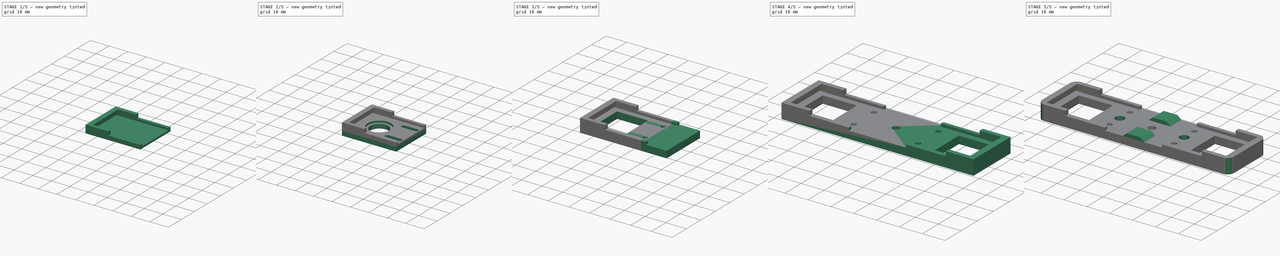
[diagram: build sequence overview — one tinted view per stage of 5, left to right]
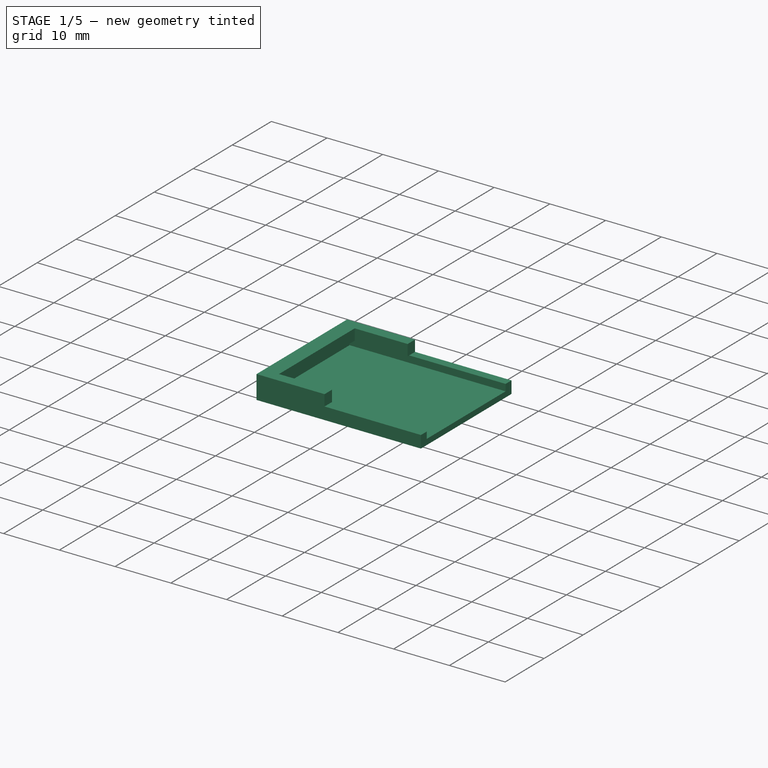
[diagram: stage 1 of 5 — iso view after this stage's code; geometry added in this stage tinted green]
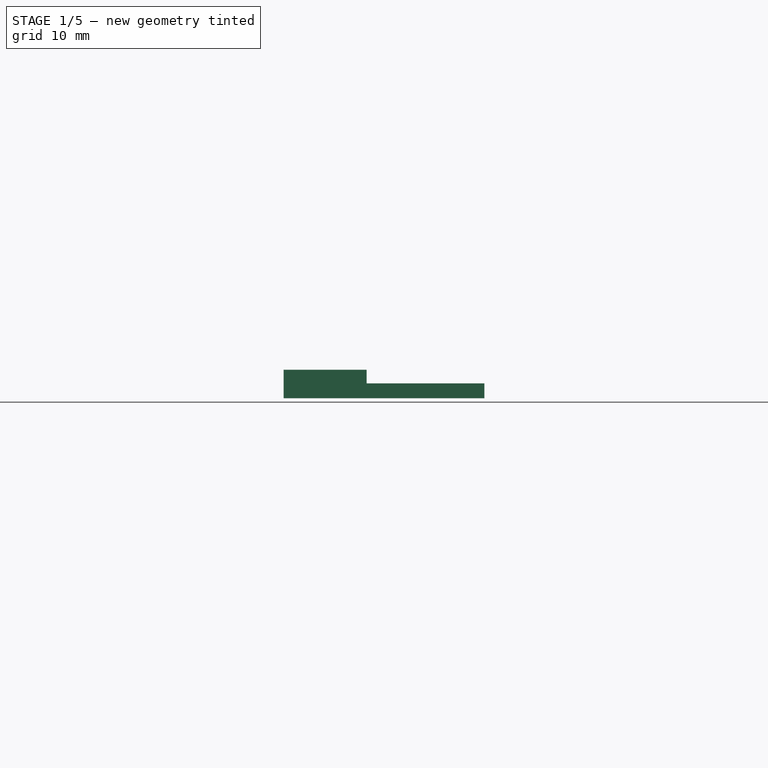
[diagram: stage 1 of 5 — front view after this stage's code; geometry added in this stage tinted green]
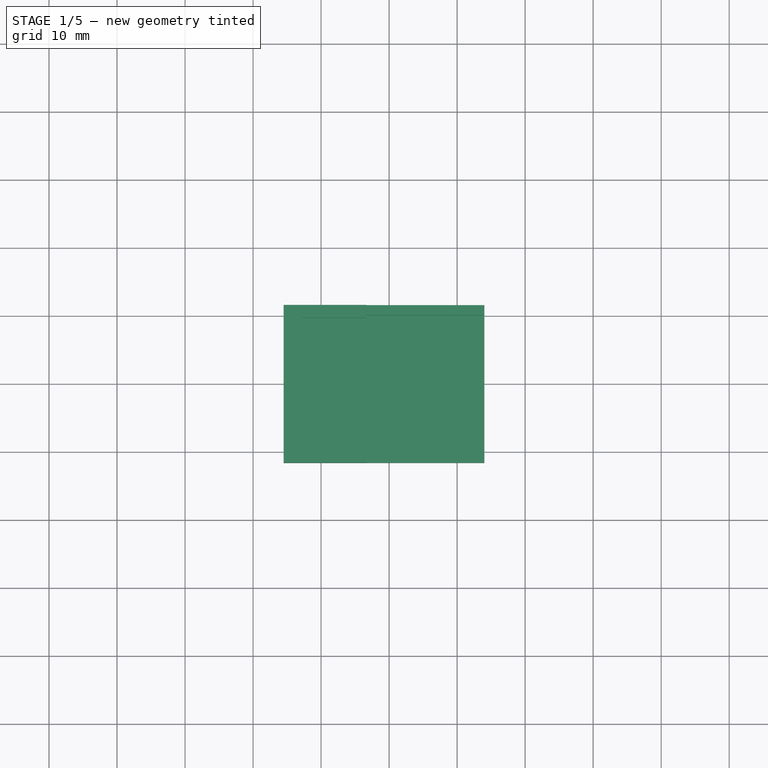
[diagram: stage 1 of 5 — top view after this stage's code; geometry added in this stage tinted green]
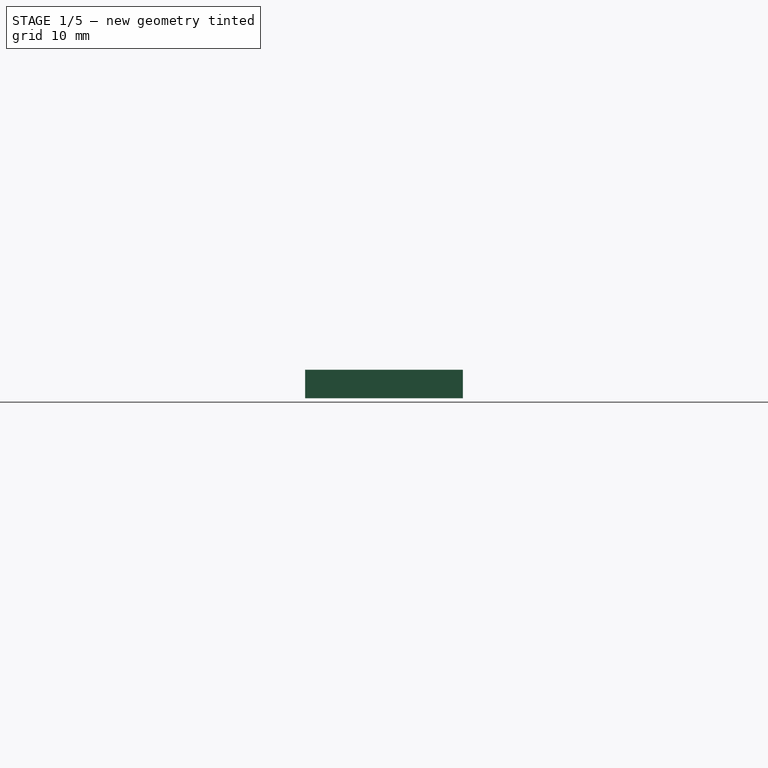
[diagram: stage 1 of 5 — right view after this stage's code; geometry added in this stage tinted green]
FCSTD DOCUMENT  (FreeCAD 0.21R33771 (Git))
Label: case-lamp-base
License: All rights reserved
LicenseURL: http://en.wikipedia.org/wiki/All_rights_reserved
objects: Sketcher::SketchObject×13, PartDesign::Pad×10, PartDesign::Pocket×7, PartDesign::Body×2, PartDesign::Plane×1, PartDesign::Mirrored×1, Part::Refine×1, PartDesign::FeatureBase×1, PartDesign::Line×1, PartDesign::Fillet×1
note: 56 computed .brp shape members not serialized (recipe doc carries the construction recipe); baked Part::Feature solids carry a one-line shape summary decoded from their .brp

FEATURE [Sketcher::SketchObject] Sketch
  FullyConstrained = true
  MapMode = 5
  Support = -> [XY_Plane]
  sketch-geometry (10):
    g0: LineSegment StartX=-14 StartY=10.1 StartZ=0 EndX=14 EndY=10.1 EndZ=0
    g1: LineSegment StartX=14 StartY=10.1 StartZ=0 EndX=14 EndY=-10.1 EndZ=0
    g2: LineSegment StartX=14 StartY=-10.1 StartZ=0 EndX=-14 EndY=-10.1 EndZ=0
    g3: LineSegment StartX=-14 StartY=-10.1 StartZ=0 EndX=-14 EndY=10.1 EndZ=0
    g4: Circle CenterX=-3.5 CenterY=0 CenterZ=0 NormalX=0 NormalY=0 NormalZ=1 AngleXU=0 Radius=9.5
    g5: LineSegment StartX=-3.5 StartY=9.5 StartZ=0 EndX=7.5 EndY=9.5 EndZ=0
    g6: Circle CenterX=7.5 CenterY=6 CenterZ=0 NormalX=0 NormalY=0 NormalZ=1 AngleXU=0 Radius=3.5
    g7: LineSegment StartX=7.5 StartY=6 StartZ=0 EndX=-3.5 EndY=6 EndZ=0
    g8: GeomPoint X=-13 Y=0 Z=0
    g9: GeomPoint X=-14 Y=0 Z=0
  constraints (28):
    c: Coincident(g0,g1)
    c: Coincident(g1,g2)
    c: Coincident(g2,g3)
    c: Coincident(g3,g0)
    c: Horizontal(g2)
    c: Vertical(g1)
    c: Symmetric(g0,g0,g-2)
    c: Symmetric(g0,g2,g-1)
    c: DistanceY(g3,g3) = 20.2
    c: DistanceX(g2,g2) = 28
    c: PointOnObject(g4,g-1)
    c: Diameter(g4) = 19
    c: Horizontal(g5)
    c: Tangent(g5,g4) = 1.5708
    c: Tangent(g6,g5)
    c: Vertical(g6,g5)
    c: Coincident(g7,g6)
    c: Horizontal(g7)
    c: Vertical(g7,g4)
    c: DistanceX(g7,g7) = 11
    c: Diameter(g6) = 7
    c: PointOnObject(g8,g-1)
    c: PointOnObject(g8,g4)
    c: PointOnObject(g9,g3)
    c: PointOnObject(g9,g-1)
    c: DistanceX(g9,g8) = 1
    c: DistanceX(g0,g5) = 10.5
    c: DistanceY(g5,g0) = 0.6
FEATURE [PartDesign::Pad] Pad
  Direction = (0,0,1)
  Length = 1
  Length2 = 10
  Profile = -> Sketch
  ReferenceAxis = -> Sketch [N_Axis]
  Type = 0
FEATURE [Sketcher::SketchObject] Sketch001
  ExternalGeometry = -> [Pad]
  FullyConstrained = true
  MapMode = 5
  Placement = pos=(0,0,1) rot=(0,0,1;0rad)
  Support = -> [Pad]
  sketch-geometry (12):
    g0: Circle CenterX=-3.5 CenterY=0 CenterZ=0 NormalX=0 NormalY=0 NormalZ=1 AngleXU=0 Radius=9.5
    g1: Circle CenterX=7.5 CenterY=6 CenterZ=0 NormalX=0 NormalY=0 NormalZ=1 AngleXU=0 Radius=3.5
    g2: LineSegment StartX=-3.5 StartY=9.5 StartZ=0 EndX=7.5 EndY=9.5 EndZ=0
    g3: GeomPoint X=-13 Y=0 Z=0
    g4: LineSegment StartX=14 StartY=10.1 StartZ=0 EndX=14 EndY=11.6 EndZ=0
    g5: LineSegment StartX=14 StartY=11.6 StartZ=0 EndX=-15.5 EndY=11.6 EndZ=0
    g6: LineSegment StartX=-15.5 StartY=11.6 StartZ=0 EndX=-15.5 EndY=-11.6 EndZ=0
    g7: LineSegment StartX=-15.5 StartY=-11.6 StartZ=0 EndX=14 EndY=-11.6 EndZ=0
    g8: LineSegment StartX=14 StartY=-11.6 StartZ=0 EndX=14 EndY=-10.1 EndZ=0
    g9: LineSegment StartX=14 StartY=-10.1 StartZ=0 EndX=-14 EndY=-10.1 EndZ=0
    g10: LineSegment StartX=-14 StartY=-10.1 StartZ=0 EndX=-14 EndY=10.1 EndZ=0
    g11: LineSegment StartX=-14 StartY=10.1 StartZ=0 EndX=14 EndY=10.1 EndZ=0
  constraints (37):
    c: PointOnObject(g0,g-1)
    c: Horizontal(g2)
    c: Tangent(g2,g1)
    c: Tangent(g2,g0)
    c: Vertical(g0,g2)
    c: Vertical(g1,g2)
    c: DistanceX(g2,g2) = 11
    c: Diameter(g1) = 7
    c: Diameter(g0) = 19
    c: PointOnObject(g3,g0)
    c: PointOnObject(g3,g-1)
    c: DistanceX(g-3,g3) = 1
    c: DistanceY(g2,g-3) = 0.6
    c: Vertical(g4)
    c: Coincident(g4,g5)
    c: Horizontal(g5)
    c: Coincident(g5,g6)
    c: Vertical(g6)
    c: Coincident(g6,g7)
    c: Horizontal(g7)
    c: Coincident(g7,g8)
    c: Vertical(g8)
    c: Coincident(g8,g9)
    c: Horizontal(g9)
    c: Coincident(g9,g10)
    c: Vertical(g10)
    c: Coincident(g10,g11)
    c: Coincident(g11,g4)
    c: Horizontal(g11)
    c: PointOnObject(g-3,g9)
    c: PointOnObject(g-3,g10)
    c: PointOnObject(g-3,g11)
    c: Equal(g7,g5)
    c: Equal(g4,g8)
    c: PointOnObject(g-4,g8)
    c: DistanceY(g4,g4) = 1.5
    c: DistanceX(g5,g10) = 1.5
FEATURE [PartDesign::Pad] Pad001
  BaseFeature = -> Pad
  Direction = (0,0,1)
  Length = 10
  Length2 = 10
  Profile = -> Sketch001
  ReferenceAxis = -> Sketch001 [N_Axis]
  Type = 3
  UpToFace = -> Pad [Face5]
FEATURE [PartDesign::Pad] Pad002
  BaseFeature = -> Pad001
  Direction = (0,0,1)
  Length = 1.2
  Length2 = 10
  Profile = -> Pad001 [Face6]
  Type = 0
FEATURE [Sketcher::SketchObject] Sketch002
  ExternalGeometry = -> [Pad002]
  FullyConstrained = true
  MapMode = 5
  Placement = pos=(0,0,2.2) rot=(0,0,1;0rad)
  Support = -> [Pad002]
  sketch-geometry (11):
    g0: Circle CenterX=-3.3 CenterY=0 CenterZ=0 NormalX=0 NormalY=0 NormalZ=1 AngleXU=0 Radius=9.5
    g1: Circle CenterX=7.7 CenterY=6 CenterZ=0 NormalX=0 NormalY=0 NormalZ=1 AngleXU=0 Radius=3.5
    g2: LineSegment StartX=-3.3 StartY=9.5 StartZ=0 EndX=7.7 EndY=9.5 EndZ=0
    g3: LineSegment StartX=-3.3 StartY=-9.7 StartZ=0 EndX=-12.8 EndY=-9.7 EndZ=0
    g4: LineSegment StartX=-12.8 StartY=-9.7 StartZ=0 EndX=-12.8 EndY=9.7 EndZ=0
    g5: LineSegment StartX=-12.8 StartY=9.7 StartZ=0 EndX=-3.3 EndY=9.7 EndZ=0
    g6: LineSegment StartX=-3.3 StartY=9.7 StartZ=0 EndX=-3.3 EndY=11.6 EndZ=0
    g7: LineSegment StartX=-3.3 StartY=11.6 StartZ=0 EndX=-15.5 EndY=11.6 EndZ=0
    g8: LineSegment StartX=-15.5 StartY=11.6 StartZ=0 EndX=-15.5 EndY=-11.6 EndZ=0
    g9: LineSegment StartX=-15.5 StartY=-11.6 StartZ=0 EndX=-3.3 EndY=-11.6 EndZ=0
    g10: LineSegment StartX=-3.3 StartY=-11.6 StartZ=0 EndX=-3.3 EndY=-9.7 EndZ=0
  constraints (34):
    c: PointOnObject(g0,g-1)
    c: Horizontal(g2)
    c: Vertical(g2,g0)
    c: Vertical(g1,g2)
    c: Tangent(g2,g0)
    c: Tangent(g1,g2)
    c: Diameter(g1) = 7
    c: DistanceX(g2,g2) = 11
    c: Diameter(g0) = 19
    c: Horizontal(g3)
    c: Coincident(g3,g4)
    c: Vertical(g4)
    c: Coincident(g4,g5)
    c: Horizontal(g5)
    c: Coincident(g5,g6)
    c: Vertical(g6)
    c: Coincident(g6,g7)
    c: Horizontal(g7)
    c: Coincident(g7,g8)
    c: Vertical(g8)
    c: Coincident(g8,g9)
    c: Horizontal(g9)
    c: Coincident(g9,g10)
    c: Coincident(g10,g3)
    c: Vertical(g10)
    c: Equal(g10,g6)
    c: Equal(g7,g9)
    c: Vertical(g2,g5)
    c: Tangent(g4,g0)
    c: DistanceY(g2,g5) = 0.2
    c: DistanceX(g-3,g4) = 1.2
    c: PointOnObject(g-4,g8)
    c: PointOnObject(g-4,g7)
    c: PointOnObject(g-4,g9)
FEATURE [PartDesign::Pad] Pad003
  BaseFeature = -> Pad002
  Direction = (0,0,1)
  Length = 2
  Length2 = 10
  Profile = -> Sketch002
  ReferenceAxis = -> Sketch002 [N_Axis]
  Type = 0
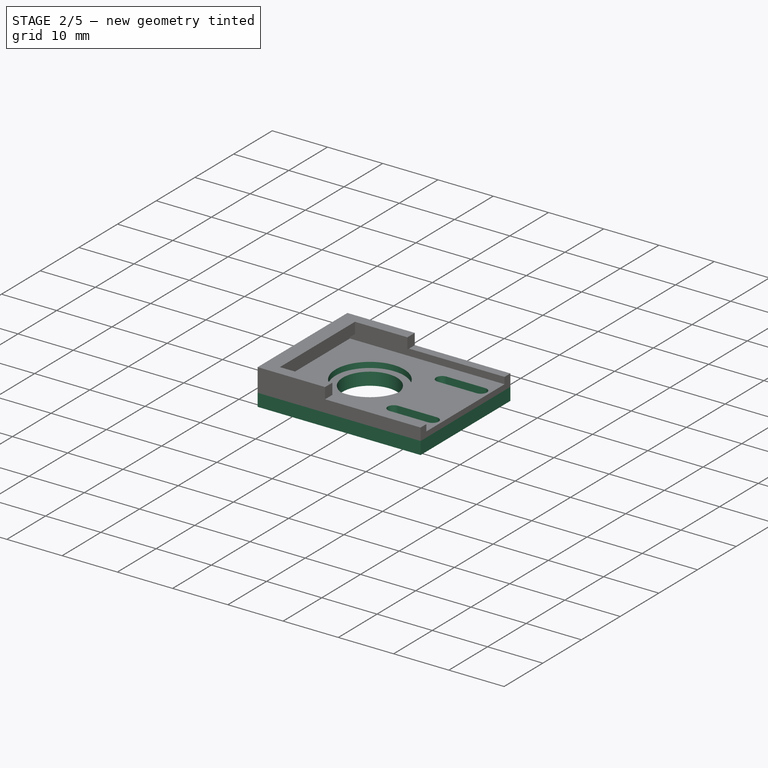
[diagram: stage 2 of 5 — iso view after this stage's code; geometry added in this stage tinted green]
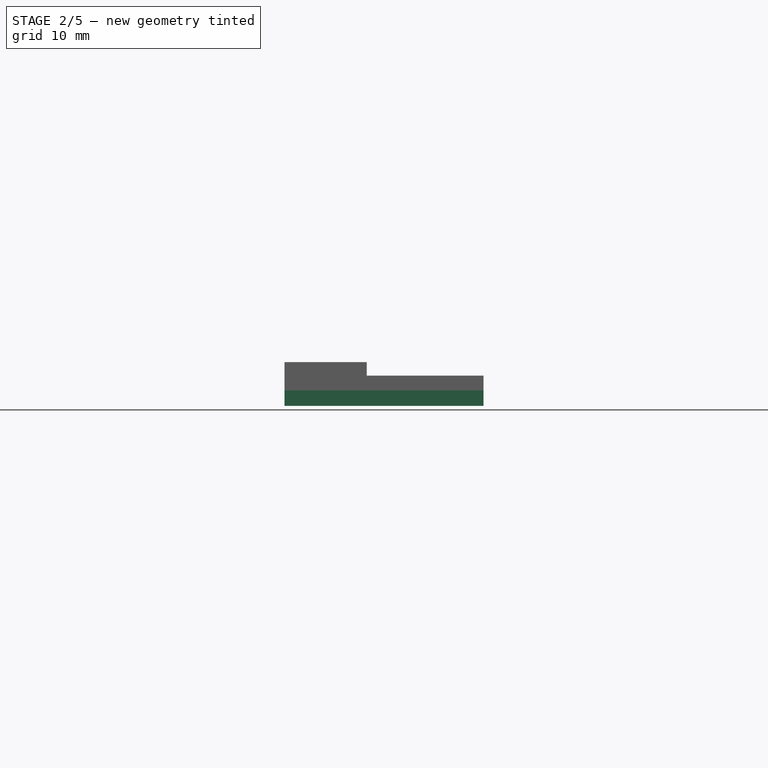
[diagram: stage 2 of 5 — front view after this stage's code; geometry added in this stage tinted green]
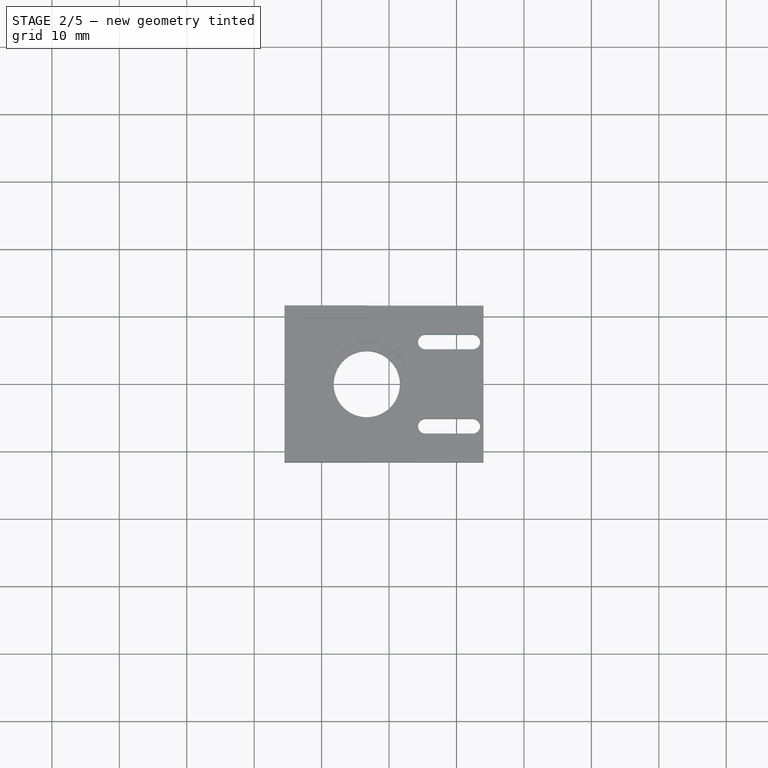
[diagram: stage 2 of 5 — top view after this stage's code; geometry added in this stage tinted green]
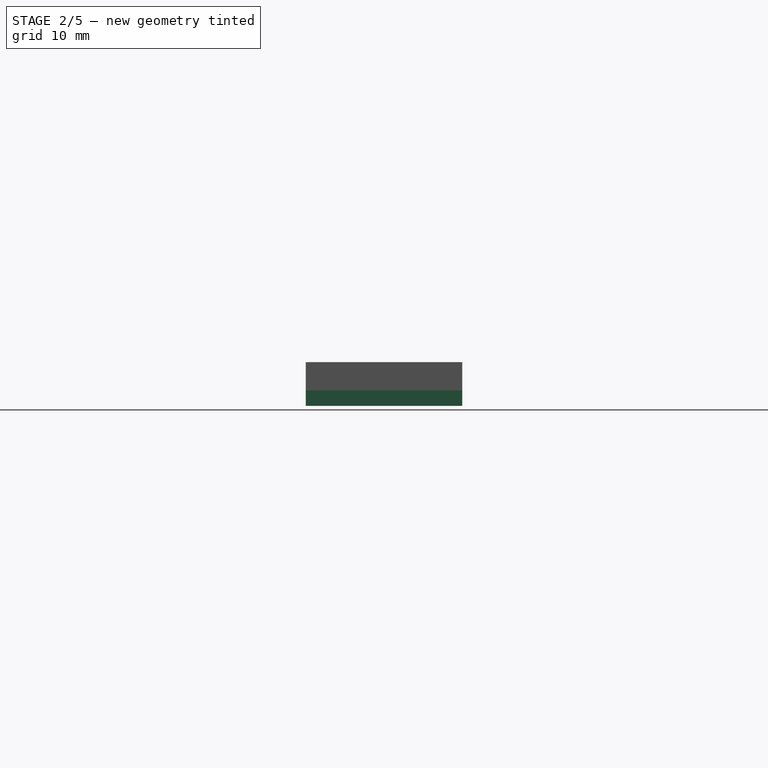
[diagram: stage 2 of 5 — right view after this stage's code; geometry added in this stage tinted green]
FEATURE [Sketcher::SketchObject] Sketch003
  ExternalGeometry = -> [Pad003]
  FullyConstrained = true
  MapMode = 5
  Placement = pos=(0,0,1) rot=(0,0,1;0rad)
  Support = -> [Pad003]
  sketch-geometry (12):
    g0: Circle CenterX=12.4 CenterY=6.25 CenterZ=0 NormalX=0 NormalY=0 NormalZ=1 AngleXU=0 Radius=1.1
    g1: Circle CenterX=12.4 CenterY=-6.25 CenterZ=0 NormalX=0 NormalY=0 NormalZ=1 AngleXU=0 Radius=1.1
    g2: LineSegment StartX=12.4 StartY=-6.25 StartZ=0 EndX=12.4 EndY=6.25 EndZ=0
    g3: GeomPoint X=13.5 Y=6.25 Z=0
    g4: ArcOfCircle CenterX=12.4 CenterY=6.25 CenterZ=0 NormalX=0 NormalY=0 NormalZ=1 AngleXU=0 Radius=1.1 StartAngle=4.71239 EndAngle=7.85398
    g5: ArcOfCircle CenterX=5.4 CenterY=6.25 CenterZ=0 NormalX=0 NormalY=0 NormalZ=1 AngleXU=0 Radius=1.1 StartAngle=1.5708 EndAngle=4.71239
    g6: LineSegment StartX=12.4 StartY=7.35 StartZ=0 EndX=5.4 EndY=7.35 EndZ=0
    g7: LineSegment StartX=5.4 StartY=5.15 StartZ=0 EndX=12.4 EndY=5.15 EndZ=0
    g8: ArcOfCircle CenterX=12.4 CenterY=-6.25 CenterZ=0 NormalX=0 NormalY=0 NormalZ=1 AngleXU=0 Radius=1.1 StartAngle=4.71239 EndAngle=7.85398
    g9: ArcOfCircle CenterX=5.4 CenterY=-6.25 CenterZ=0 NormalX=0 NormalY=0 NormalZ=1 AngleXU=0 Radius=1.1 StartAngle=1.5708 EndAngle=4.71239
    g10: LineSegment StartX=12.4 StartY=-5.15 StartZ=0 EndX=5.4 EndY=-5.15 EndZ=0
    g11: LineSegment StartX=5.4 StartY=-7.35 StartZ=0 EndX=12.4 EndY=-7.35 EndZ=0
  constraints (27):
    c: Coincident(g2,g0)
    c: Coincident(g2,g1)
    c: Symmetric(g0,g1,g-1)
    c: Diameter(g0) = 2.2
    c: Equal(g1,g0)
    c: DistanceY(g2,g2) = 12.5
    c: PointOnObject(g3,g0)
    c: Horizontal(g3,g0)
    c: DistanceX(g3,g-3) = 0.5
    c: Tangent(g4,g6) = -1.5708
    c: Tangent(g6,g5) = -1.5708
    c: Tangent(g5,g7) = -1.5708
    c: Tangent(g7,g4) = -1.5708
    c: Equal(g4,g5)
    c: Coincident(g4,g0)
    c: Tangent(g8,g10) = -1.5708
    c: Tangent(g10,g9) = -1.5708
    c: Tangent(g9,g11) = -1.5708
    c: Tangent(g11,g8) = -1.5708
    c: Equal(g8,g9)
    c: Coincident(g8,g1)
    c: Equal(g8,g1)
    c: Equal(g1,g4)
    c: Horizontal(g7)
    c: Horizontal(g11)
    c: Vertical(g9,g5)
    c: DistanceX(g9,g8) = 7
FEATURE [PartDesign::Pocket] Pocket
  BaseFeature = -> Pad003
  Direction = (0,0,-1)
  Length = 5
  Length2 = 5
  Profile = -> Sketch003
  ReferenceAxis = -> Sketch003 [N_Axis]
  Type = 1
FEATURE [Sketcher::SketchObject] Sketch004
  ExternalGeometry = -> [Pocket]
  FullyConstrained = true
  MapMode = 5
  Placement = pos=(0,0,1) rot=(0,0,1;0rad)
  Support = -> [Pocket]
  sketch-geometry (2):
    g0: Circle CenterX=-3.3 CenterY=0 CenterZ=0 NormalX=0 NormalY=0 NormalZ=1 AngleXU=0 Radius=6.2
    g1: Circle CenterX=-3.3 CenterY=0 CenterZ=0 NormalX=0 NormalY=0 NormalZ=1 AngleXU=0 Radius=9.5
  constraints (5):
    c: PointOnObject(g0,g-1)
    c: Coincident(g1,g0)
    c: Diameter(g1) = 19
    c: Tangent(g1,g-3)
    c: Diameter(g0) = 12.4
FEATURE [PartDesign::Pocket] Pocket001
  BaseFeature = -> Pocket
  Direction = (0,0,-1)
  Length = 1
  Length2 = 5
  Profile = -> Sketch004
  ReferenceAxis = -> Sketch004 [N_Axis]
  Type = 0
FEATURE [PartDesign::Pad] Pad004
  BaseFeature = -> Pocket001
  Direction = (0,0,-1)
  Length = 2.3
  Length2 = 10
  Profile = -> Pocket001 [Face4,Face8]
  Type = 0
FEATURE [Sketcher::SketchObject] Sketch005
  ExternalGeometry = -> [Pad004]
  FullyConstrained = true
  MapMode = 5
  Placement = pos=(0,0,-2.3) rot=(1,0,0;3.14159rad)
  Support = -> [Pad004]
  sketch-geometry (2):
    g0: Circle CenterX=-3.3 CenterY=0 CenterZ=0 NormalX=0 NormalY=0 NormalZ=1 AngleXU=0 Radius=4.9
    g1: Circle CenterX=-3.3 CenterY=0 CenterZ=0 NormalX=0 NormalY=0 NormalZ=1 AngleXU=0 Radius=6.2
  constraints (4):
    c: Coincident(g0,g-3)
    c: Diameter(g0) = 9.8
    c: Coincident(g1,g0)
    c: Equal(g1,g-3)
FEATURE [PartDesign::Pad] Pad005
  BaseFeature = -> Pad004
  Direction = (0,0,-1)
  Length = 2.3
  Length2 = 10
  Profile = -> Sketch005
  ReferenceAxis = -> Sketch005 [N_Axis]
  Reversed = true
  Type = 0
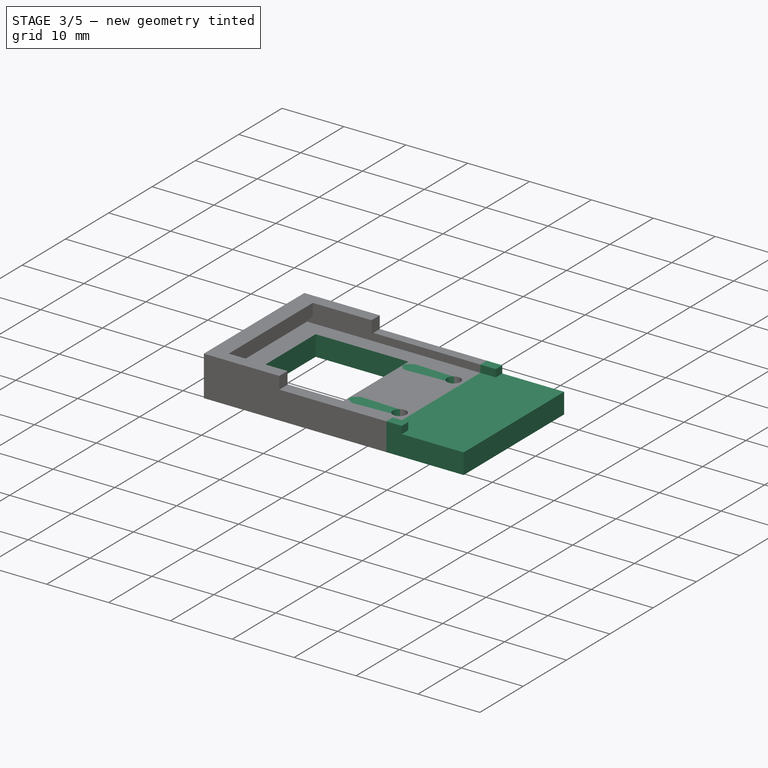
[diagram: stage 3 of 5 — iso view after this stage's code; geometry added in this stage tinted green]
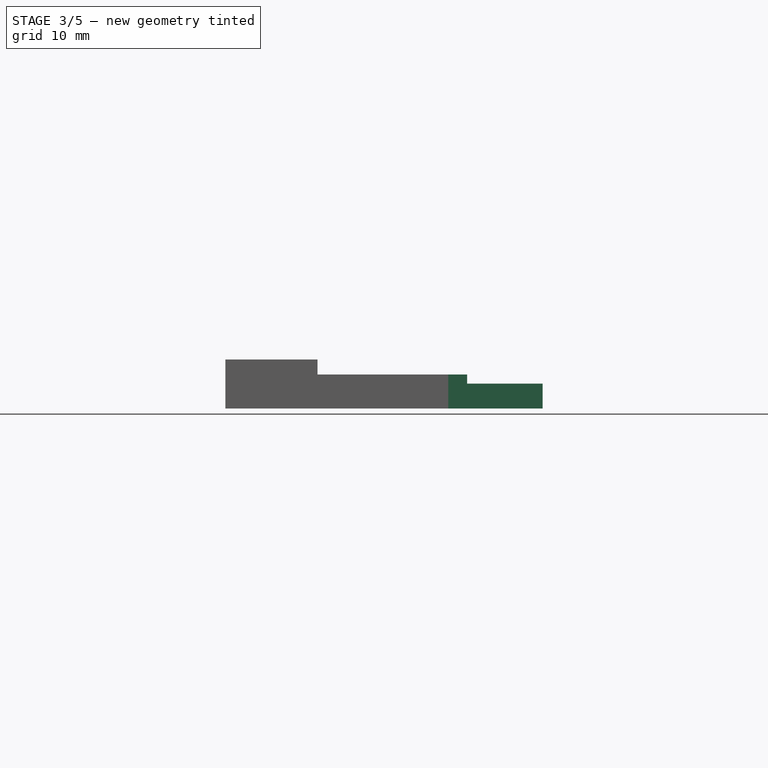
[diagram: stage 3 of 5 — front view after this stage's code; geometry added in this stage tinted green]
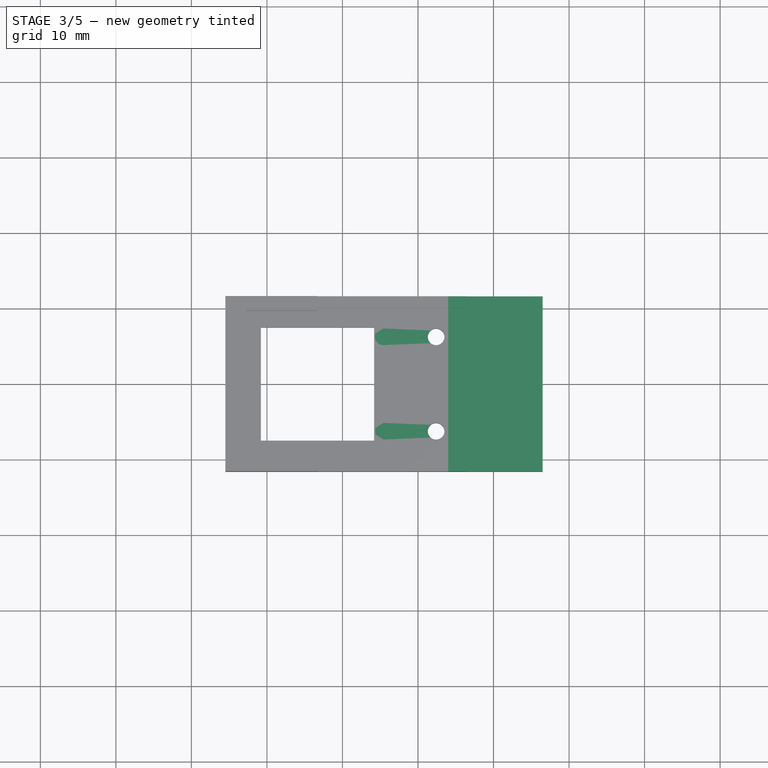
[diagram: stage 3 of 5 — top view after this stage's code; geometry added in this stage tinted green]
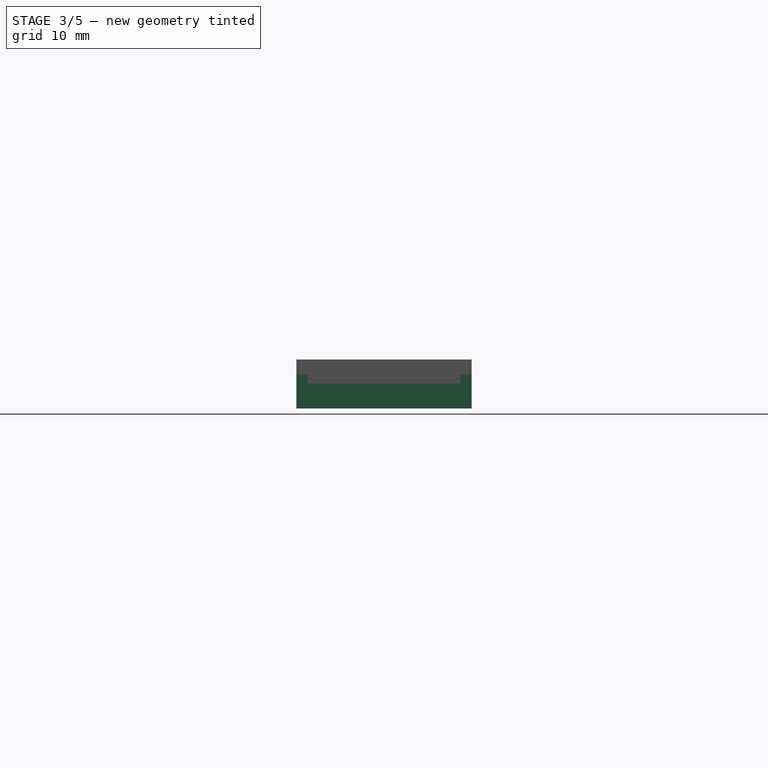
[diagram: stage 3 of 5 — right view after this stage's code; geometry added in this stage tinted green]
FEATURE [PartDesign::Pad] Pad006
  BaseFeature = -> Pad005
  Direction = (1,0,0)
  Length = 2.5
  Length2 = 10
  Profile = -> Pad005 [Face6,Face2,Face8,Face4,Face1,Face9,Face3,Face10]
  Type = 0
FEATURE [Sketcher::SketchObject] Sketch006
  ExternalGeometry = -> [Pad006]
  FullyConstrained = true
  MapMode = 5
  Placement = pos=(0,0,1) rot=(0,0,1;0rad)
  Support = -> [Pad006]
  sketch-geometry (4):
    g0: LineSegment StartX=4.3 StartY=7.35 StartZ=0 EndX=12.4 EndY=7.35 EndZ=0
    g1: LineSegment StartX=12.4 StartY=7.35 StartZ=0 EndX=12.4 EndY=-7.35 EndZ=0
    g2: LineSegment StartX=12.4 StartY=-7.35 StartZ=0 EndX=4.3 EndY=-7.35 EndZ=0
    g3: LineSegment StartX=4.3 StartY=-7.35 StartZ=0 EndX=4.3 EndY=7.35 EndZ=0
  constraints (11):
    c: Coincident(g0,g1)
    c: Coincident(g1,g2)
    c: Coincident(g2,g3)
    c: Coincident(g3,g0)
    c: Horizontal(g0)
    c: Horizontal(g2)
    c: Vertical(g1)
    c: Vertical(g3)
    c: Coincident(g-3,g0)
    c: Tangent(g3,g-5)
    c: Tangent(g2,g-5)
FEATURE [PartDesign::Pad] Pad007
  BaseFeature = -> Pad006
  Direction = (0,0,1)
  Length = 10
  Length2 = 10
  Profile = -> Sketch006
  ReferenceAxis = -> Sketch006 [N_Axis]
  Type = 3
  UpToFace = -> Pad006 [Face45]
FEATURE [Sketcher::SketchObject] Sketch007
  ExternalGeometry = -> [Pad007]
  FullyConstrained = true
  MapMode = 5
  Placement = pos=(0,0,1) rot=(0,0,1;0rad)
  Support = -> [Pad007]
  sketch-geometry (7):
    g0: Circle CenterX=12.4 CenterY=6.25 CenterZ=0 NormalX=0 NormalY=0 NormalZ=1 AngleXU=0 Radius=1.1
    g1: Circle CenterX=12.4 CenterY=-6.25 CenterZ=0 NormalX=0 NormalY=0 NormalZ=1 AngleXU=0 Radius=1.1
    g2: LineSegment StartX=-10.8 StartY=7.5 StartZ=0 EndX=4.2 EndY=7.5 EndZ=0
    g3: LineSegment StartX=4.2 StartY=7.5 StartZ=0 EndX=4.2 EndY=-7.5 EndZ=0
    g4: LineSegment StartX=4.2 StartY=-7.5 StartZ=0 EndX=-10.8 EndY=-7.5 EndZ=0
    g5: LineSegment StartX=-10.8 StartY=-7.5 StartZ=0 EndX=-10.8 EndY=7.5 EndZ=0
    g6: Circle CenterX=-3.3 CenterY=0 CenterZ=0 NormalX=0 NormalY=0 NormalZ=1 AngleXU=0 Radius=7.5
  constraints (18):
    c: Coincident(g0,g-3)
    c: Coincident(g1,g-4)
    c: Equal(g1,g-4)
    c: Equal(g0,g-3)
    c: Coincident(g2,g3)
    c: Coincident(g3,g4)
    c: Coincident(g4,g5)
    c: Coincident(g5,g2)
    c: Horizontal(g2)
    c: Horizontal(g4)
    c: Vertical(g3)
    c: Vertical(g5)
    c: Coincident(g6,g-5)
    c: Tangent(g6,g4)
    c: Tangent(g6,g5)
    c: Tangent(g6,g2)
    c: Tangent(g3,g6)
    c: DistanceY(g5,g5) = 15
FEATURE [PartDesign::Pocket] Pocket002
  BaseFeature = -> Pad007
  Direction = (0,0,-1)
  Length = 0
  Length2 = 5
  Profile = -> Sketch007
  ReferenceAxis = -> Sketch007 [N_Axis]
  Type = 3
  UpToFace = -> Pad007 [Face41]
FEATURE [Sketcher::SketchObject] Sketch008
  ExternalGeometry = -> [Pocket002]
  FullyConstrained = true
  MapMode = 5
  Placement = pos=(0,0,1) rot=(0,0,1;0rad)
  Support = -> [Pocket002]
  sketch-geometry (4):
    g0: LineSegment StartX=16.5 StartY=11.6 StartZ=0 EndX=26.5 EndY=11.6 EndZ=0
    g1: LineSegment StartX=26.5 StartY=11.6 StartZ=0 EndX=26.5 EndY=-11.6 EndZ=0
    g2: LineSegment StartX=26.5 StartY=-11.6 StartZ=0 EndX=16.5 EndY=-11.6 EndZ=0
    g3: LineSegment StartX=16.5 StartY=-11.6 StartZ=0 EndX=16.5 EndY=11.6 EndZ=0
  constraints (12):
    c: Coincident(g0,g1)
    c: Coincident(g1,g2)
    c: Coincident(g2,g3)
    c: Coincident(g3,g0)
    c: Horizontal(g0)
    c: Horizontal(g2)
    c: Vertical(g1)
    c: Vertical(g3)
    c: Coincident(g0,g-6)
    c: Horizontal(g-5,g2)
    c: DistanceX(g0,g0) = 10
    c: DistanceX(g-7,g0) = 42
FEATURE [PartDesign::Pad] Pad008
  BaseFeature = -> Pocket002
  Direction = (0,0,1)
  Length = 10
  Length2 = 10
  Profile = -> Sketch008
  ReferenceAxis = -> Sketch008 [N_Axis]
  Type = 3
  UpToFace = -> Pocket002 [Face47]
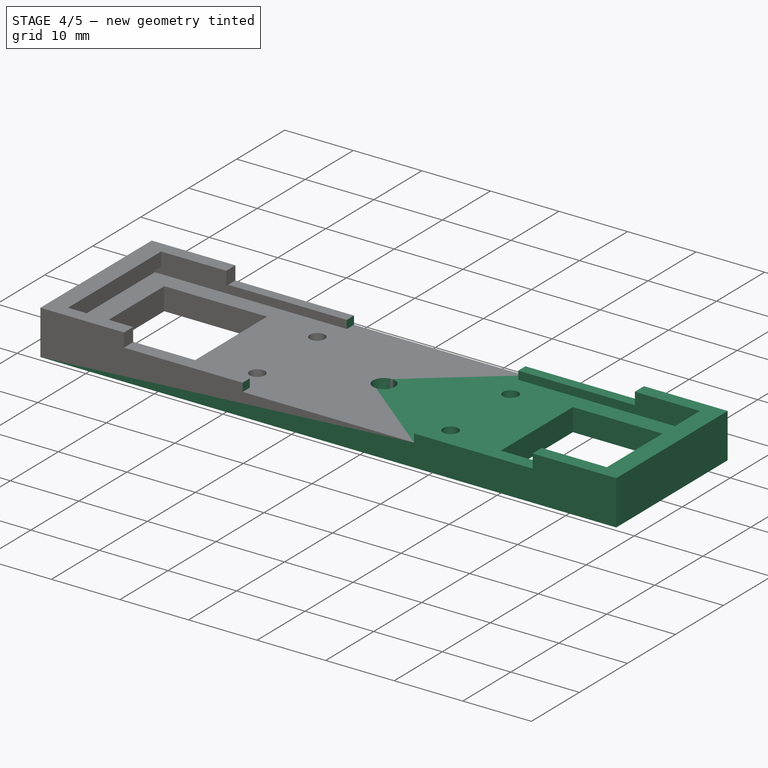
[diagram: stage 4 of 5 — iso view after this stage's code; geometry added in this stage tinted green]
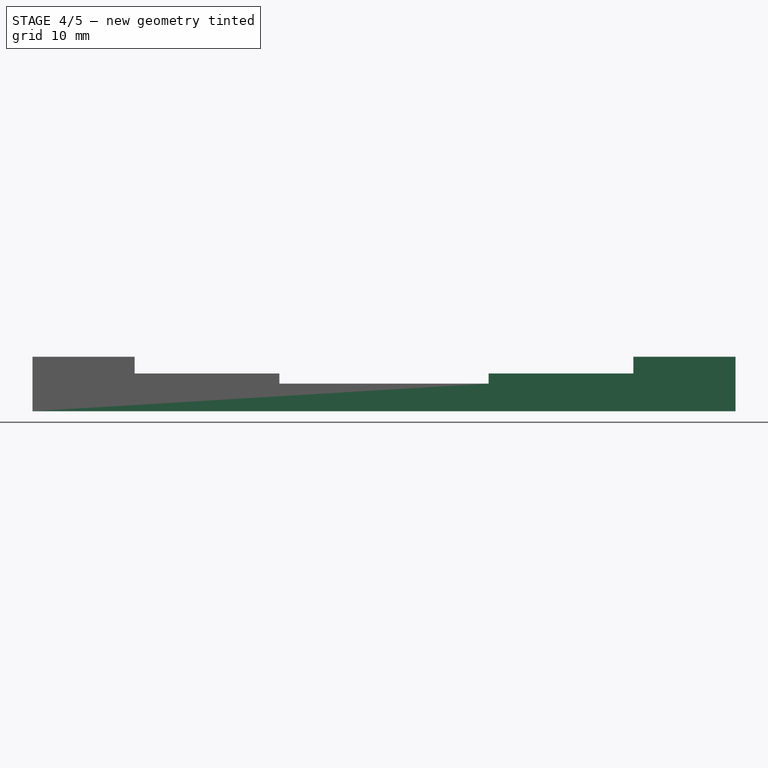
[diagram: stage 4 of 5 — front view after this stage's code; geometry added in this stage tinted green]
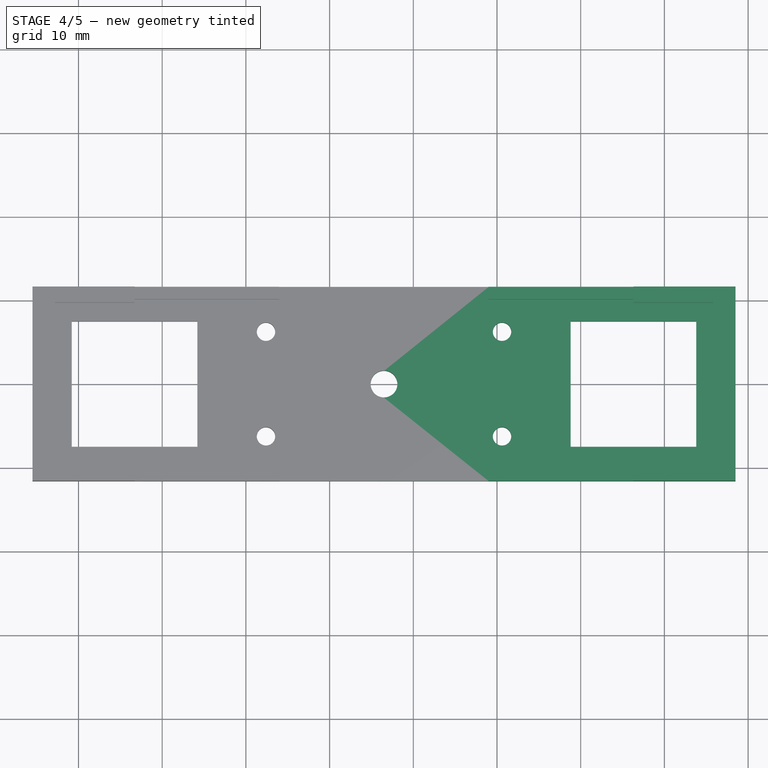
[diagram: stage 4 of 5 — top view after this stage's code; geometry added in this stage tinted green]
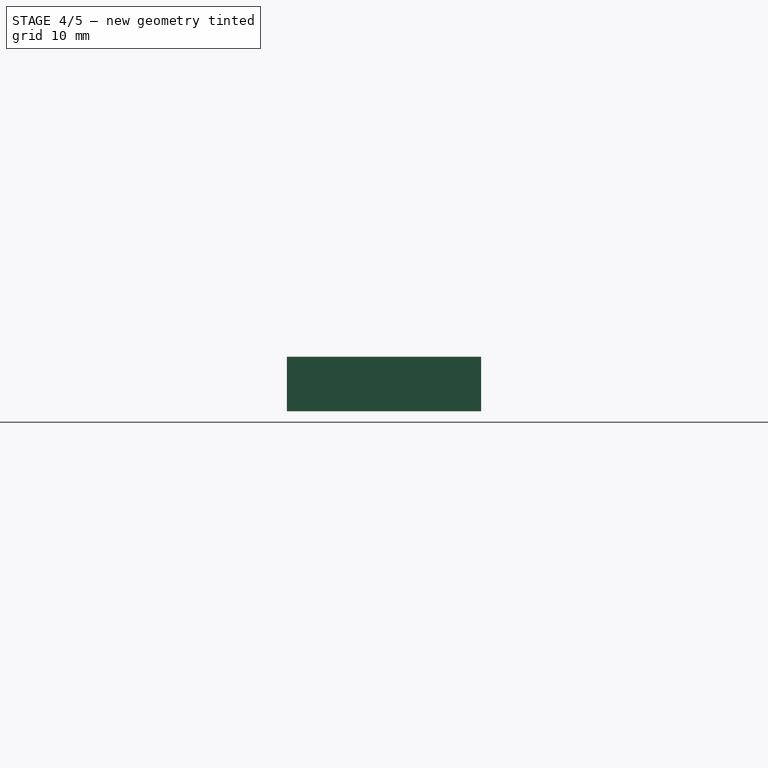
[diagram: stage 4 of 5 — right view after this stage's code; geometry added in this stage tinted green]
FEATURE [PartDesign::Pocket] Pocket003
  BaseFeature = -> Pad008
  Direction = (0,1,0)
  Length = 5
  Length2 = 5
  Profile = -> Pad008 [Face59]
  Type = 1
FEATURE [PartDesign::Plane] DatumPlane
  Length = 60
  MapMode = 5
  Placement = pos=(26.5,0,0) rot=(0.57735,0.57735,0.57735;2.0944rad)
  ResizeMode = 0
  Support = -> [Pocket003]
  Width = 60
FEATURE [PartDesign::Mirrored] Mirrored
  BaseFeature = -> Pocket003
  MirrorPlane = -> DatumPlane
  Originals = -> [Pad,Pad001,Pad002,Pad003,Pocket,Pocket001,Pad004,Pad005,Pad006,Pad007,Pocket002,Pad008,Pocket003]
FEATURE [PartDesign::Body] Body
  Group = -> [Sketch,Pad,Sketch001,Pad001,Pad002,Sketch002,Pad003,Sketch003,Pocket,Sketch004,Pocket001,Pad004,Sketch005,Pad005,Pad006,Sketch006,Pad007,Sketch007,Pocket002,Sketch008,Pad008,Pocket003,DatumPlane,Mirrored]
  Origin = -> Origin
  Tip = -> Mirrored
FEATURE [Part::Refine] Body001
  Source = -> Body
FEATURE [PartDesign::FeatureBase] BaseFeature
  BaseFeature = -> Body001
FEATURE [Sketcher::SketchObject] Sketch009
  ExternalGeometry = -> [BaseFeature]
  FullyConstrained = true
  MapMode = 5
  Placement = pos=(0,0,1) rot=(0,0,1;0rad)
  Support = -> [BaseFeature]
  sketch-geometry (2):
    g0: Circle CenterX=26.5 CenterY=0 CenterZ=0 NormalX=0 NormalY=0 NormalZ=1 AngleXU=0 Radius=1.6
    g1: LineSegment StartX=26.5 StartY=6.25 StartZ=0 EndX=26.5 EndY=-6.25 EndZ=0
  constraints (6):
    c: PointOnObject(g0,g-1)
    c: PointOnObject(g0,g1)
    c: Symmetric(g-5,g-4,g1)
    c: Diameter(g0) = 3.2
    c: Symmetric(g1,g1,g-1)
    c: Horizontal(g1,g-4)
FEATURE [PartDesign::Pocket] Pocket004
  BaseFeature = -> BaseFeature
  Direction = (0,0,-1)
  Length = 5
  Length2 = 5
  Profile = -> Sketch009
  ReferenceAxis = -> Sketch009 [N_Axis]
  Type = 1
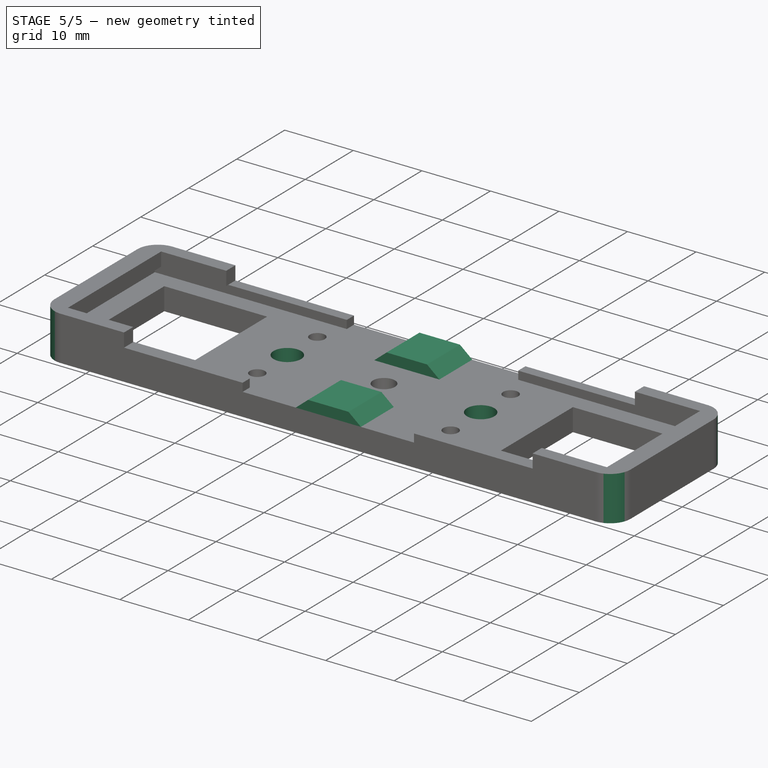
[diagram: stage 5 of 5 — iso view after this stage's code; geometry added in this stage tinted green]
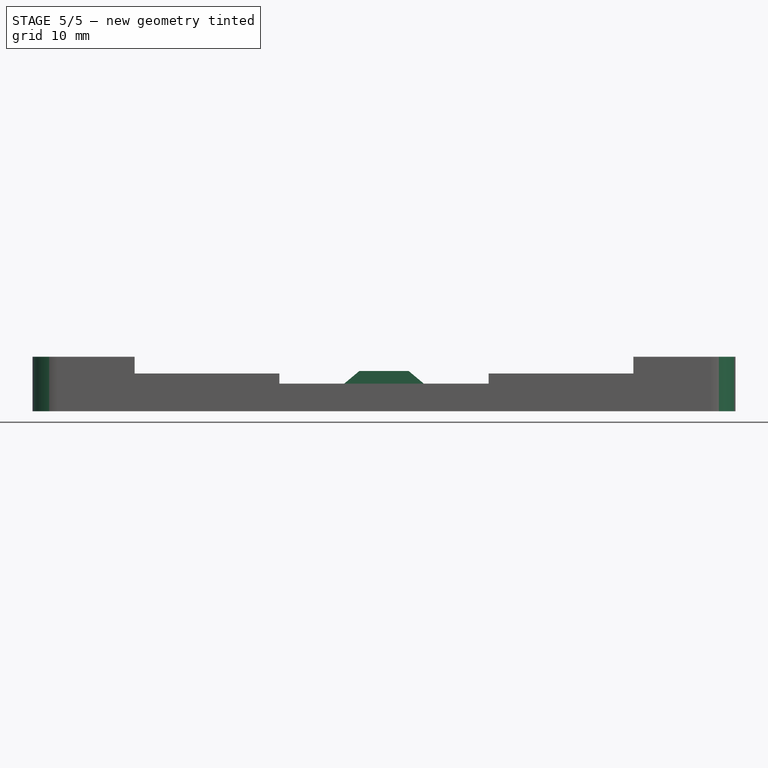
[diagram: stage 5 of 5 — front view after this stage's code; geometry added in this stage tinted green]
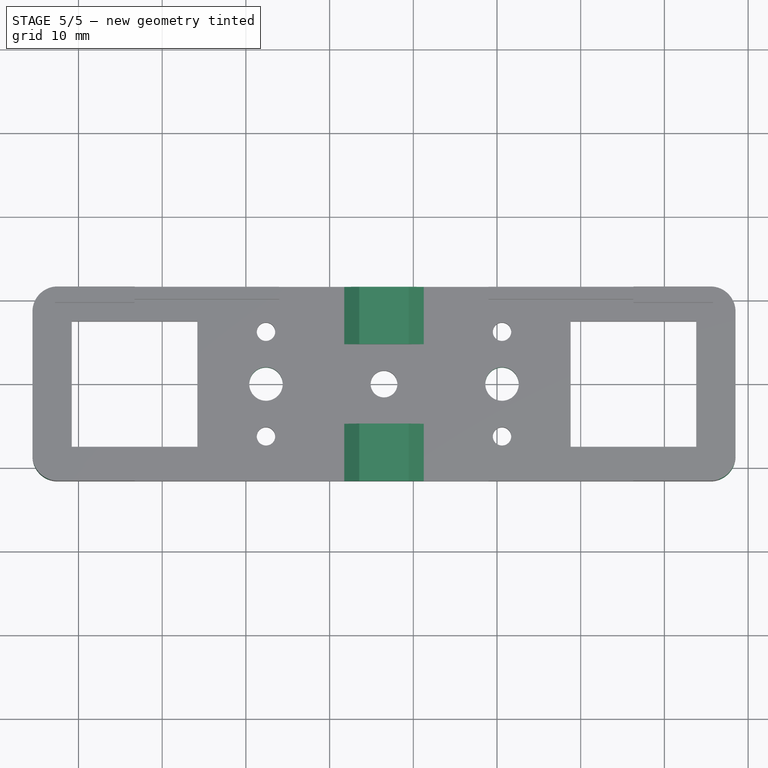
[diagram: stage 5 of 5 — top view after this stage's code; geometry added in this stage tinted green]
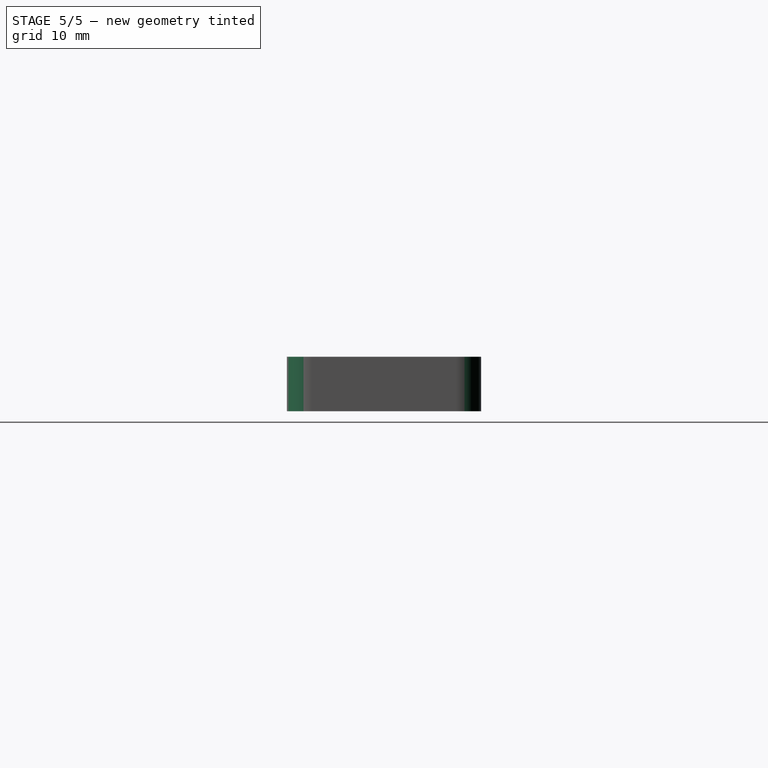
[diagram: stage 5 of 5 — right view after this stage's code; geometry added in this stage tinted green]
FEATURE [PartDesign::Line] DatumLine
  AttacherType = Attacher::AttachEngineLine
  Length = 20
  MapMode = 42
  Placement = pos=(26.5,-1e-16,0) rot=(0,0,1;0rad)
  ResizeMode = 0
  Support = -> [Pocket004]
FEATURE [Sketcher::SketchObject] Sketch010
  ExternalGeometry = -> [DatumLine,Pocket004]
  FullyConstrained = true
  MapMode = 5
  Placement = pos=(0,-11.6,-4.2e-15) rot=(1,0,0;1.5708rad)
  Support = -> [Pocket004]
  sketch-geometry (4):
    g0: LineSegment StartX=21.75 StartY=1 StartZ=0 EndX=31.25 EndY=1 EndZ=0
    g1: LineSegment StartX=31.25 StartY=1 StartZ=0 EndX=29.45 EndY=2.5 EndZ=0
    g2: LineSegment StartX=29.45 StartY=2.5 StartZ=0 EndX=23.55 EndY=2.5 EndZ=0
    g3: LineSegment StartX=23.55 StartY=2.5 StartZ=0 EndX=21.75 EndY=1 EndZ=0
  constraints (10):
    c: Coincident(g0,g1)
    c: Coincident(g1,g2)
    c: Coincident(g2,g3)
    c: Coincident(g3,g0)
    c: Symmetric(g0,g0,g-3)
    c: Symmetric(g2,g1,g-3)
    c: PointOnObject(g0,g-4)
    c: DistanceX(g0,g0) = 9.5
    c: DistanceX(g2,g2) = 5.9
    c: DistanceY(g0,g2) = 1.5
FEATURE [PartDesign::Pad] Pad009
  BaseFeature = -> Pocket004
  Direction = (0,-1,-2e-16)
  Length = 10
  Length2 = 10
  Profile = -> Sketch010
  ReferenceAxis = -> Sketch010 [N_Axis]
  Type = 3
  UpToFace = -> Pocket004 [Face17]
FEATURE [Sketcher::SketchObject] Sketch011
  ExternalGeometry = -> [DatumLine,Pad009]
  FullyConstrained = true
  MapMode = 5
  Placement = pos=(4e-16,-6e-16,2.5) rot=(0,0,1;0rad)
  Support = -> [Pad009]
  sketch-geometry (5):
    g0: Circle CenterX=26.5 CenterY=-5e-16 CenterZ=0 NormalX=0 NormalY=0 NormalZ=1 AngleXU=0 Radius=4.75
    g1: LineSegment StartX=21.75 StartY=4.75 StartZ=0 EndX=31.25 EndY=4.75 EndZ=0
    g2: LineSegment StartX=31.25 StartY=4.75 StartZ=0 EndX=31.25 EndY=-4.75 EndZ=0
    g3: LineSegment StartX=31.25 StartY=-4.75 StartZ=0 EndX=21.75 EndY=-4.75 EndZ=0
    g4: LineSegment StartX=21.75 StartY=-4.75 StartZ=0 EndX=21.75 EndY=4.75 EndZ=0
  constraints (14):
    c: Coincident(g0,g-4)
    c: Tangent(g0,g-6)
    c: Coincident(g1,g2)
    c: Coincident(g2,g3)
    c: Coincident(g3,g4)
    c: Coincident(g4,g1)
    c: Horizontal(g1)
    c: Horizontal(g3)
    c: Vertical(g2)
    c: Vertical(g4)
    c: Tangent(g0,g1)
    c: Tangent(g0,g4)
    c: Tangent(g0,g3)
    c: Tangent(g2,g0)
FEATURE [PartDesign::Pocket] Pocket005
  BaseFeature = -> Pad009
  Direction = (-2e-16,2e-16,-1)
  Length = 0
  Length2 = 5
  Profile = -> Sketch011
  ReferenceAxis = -> Sketch011 [N_Axis]
  Type = 3
  UpToFace = -> Pad009 [Face5]
FEATURE [PartDesign::Fillet] Fillet
  Base = -> Pocket005 [Edge73,Edge12,Edge96,Edge14]
  BaseFeature = -> Pocket005
  Radius = 3
  SupportTransform = false
  UseAllEdges = false
FEATURE [Sketcher::SketchObject] Sketch012
  ExternalGeometry = -> [Fillet]
  FullyConstrained = true
  MapMode = 5
  Placement = pos=(0,0,1) rot=(0,0,1;0rad)
  Support = -> [Fillet]
  sketch-geometry (2):
    g0: Circle CenterX=12.4 CenterY=0 CenterZ=0 NormalX=0 NormalY=0 NormalZ=1 AngleXU=0 Radius=2
    g1: Circle CenterX=40.6 CenterY=0 CenterZ=0 NormalX=0 NormalY=0 NormalZ=1 AngleXU=0 Radius=2
  constraints (6):
    c: PointOnObject(g0,g-1)
    c: PointOnObject(g1,g-1)
    c: Equal(g1,g0)
    c: Diameter(g1) = 4
    c: Vertical(g1,g-6)
    c: Vertical(g0,g-3)
FEATURE [PartDesign::Pocket] Pocket006
  BaseFeature = -> Fillet
  Direction = (0,0,-1)
  Length = 5
  Length2 = 5
  Profile = -> Sketch012
  ReferenceAxis = -> Sketch012 [N_Axis]
  Type = 1
FEATURE [PartDesign::Body] Body002
  BaseFeature = -> Body001
  Group = -> [BaseFeature,Sketch009,Pocket004,DatumLine,Sketch010,Pad009,Sketch011,Pocket005,Fillet,Sketch012,Pocket006]
  Origin = -> Origin001
  Tip = -> Pocket006
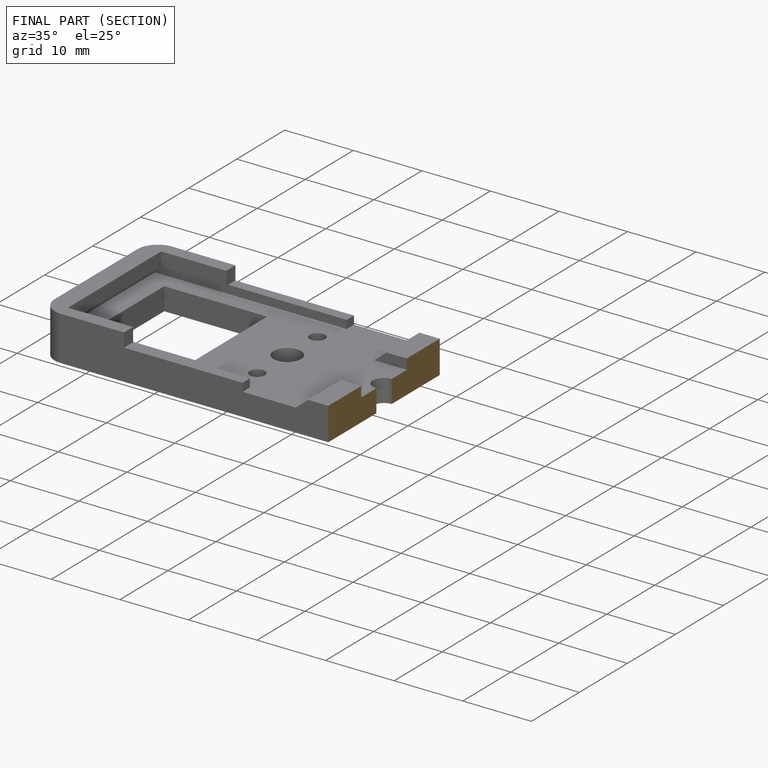
[diagram: finished part — half-section view (interior)]
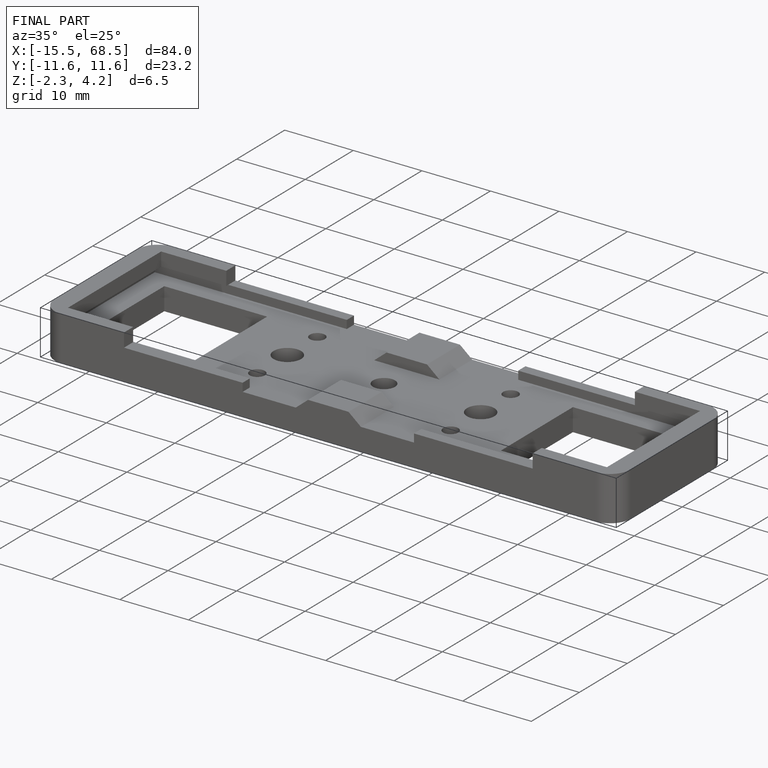
[diagram: finished part — iso view with bounding-box wireframe]
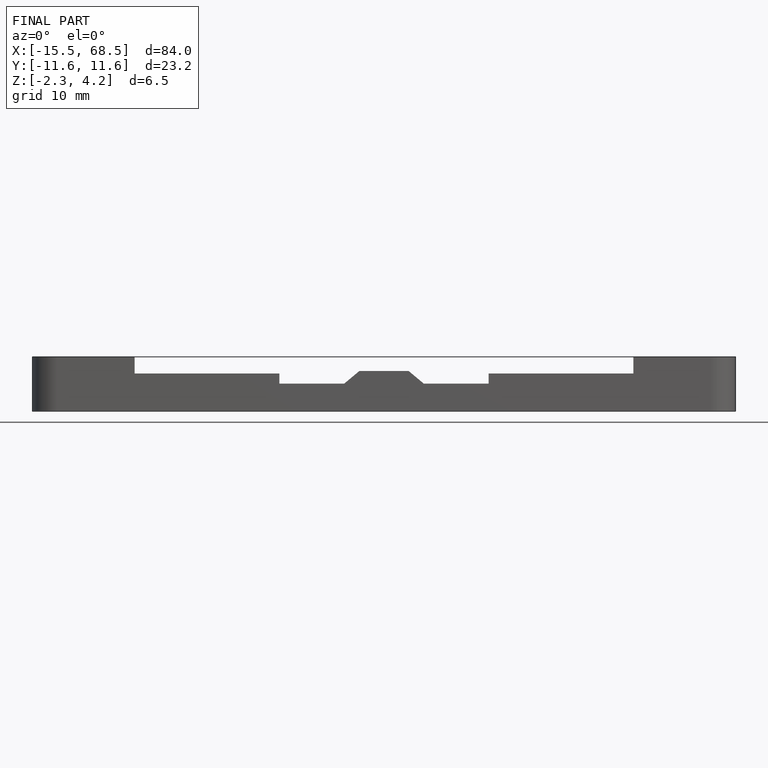
[diagram: finished part — front view with bounding-box wireframe]
